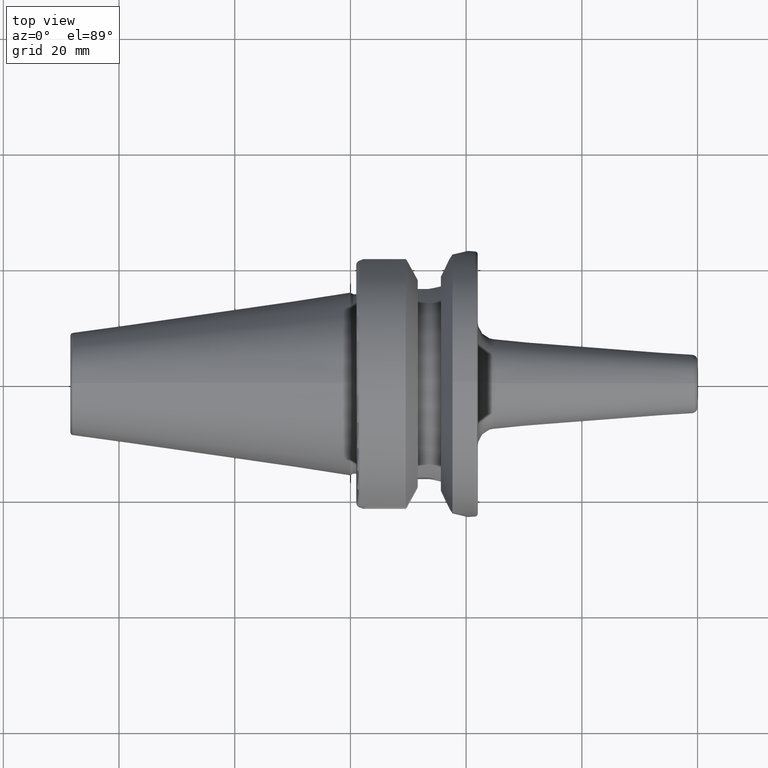
[diagram: clean part render]
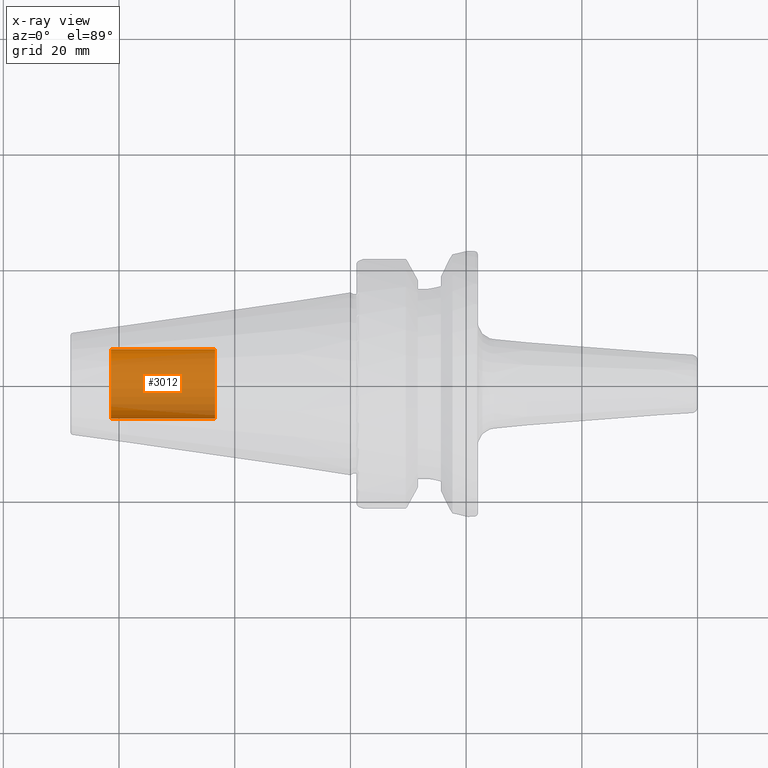
[diagram: x-ray — body ghosted, one internal face saturated and labeled with its STEP entity id]
A machine part, top view, then the same camera in x-ray: the body is ghosted and one INTERNAL B-rep face — a face not visible from any outside direction — is saturated and labeled: STEP entity #3012.
In plain terms, the highlighted cylindrical surface (edge-blend (fillet) strip) has radius 6 mm, axis along (-1, 0, 0).
Its self-contained STEP definition (entity closure, byte-faithful):
#2947=CARTESIAN_POINT('',(-4.14E1,0.E0,0.E0));
#2948=DIRECTION('',(1.E0,0.E0,0.E0));
#2949=DIRECTION('',(0.E0,-1.E0,0.E0));
#2950=AXIS2_PLACEMENT_3D('',#2947,#2948,#2949);
#2957=DIRECTION('',(1.E0,0.E0,0.E0));
#2958=VECTOR('',#2957,1.8E1);
#2959=CARTESIAN_POINT('',(-4.14E1,-6.E0,0.E0));
#2960=LINE('',#2959,#2958);
#2961=DIRECTION('',(1.E0,0.E0,0.E0));
#2962=VECTOR('',#2961,1.8E1);
#2963=CARTESIAN_POINT('',(-4.14E1,6.E0,0.E0));
#2964=LINE('',#2963,#2962);
#2970=CARTESIAN_POINT('',(-2.34E1,0.E0,0.E0));
#2971=DIRECTION('',(-1.E0,0.E0,0.E0));
#2972=DIRECTION('',(0.E0,1.E0,0.E0));
#2973=AXIS2_PLACEMENT_3D('',#2970,#2971,#2972);
#2985=CARTESIAN_POINT('',(-2.34E1,6.E0,0.E0));
#2986=CARTESIAN_POINT('',(-2.34E1,-6.E0,0.E0));
#2987=VERTEX_POINT('',#2985);
#2988=VERTEX_POINT('',#2986);
#2989=CARTESIAN_POINT('',(-4.14E1,6.E0,0.E0));
#2990=CARTESIAN_POINT('',(-4.14E1,-6.E0,0.E0));
#2991=VERTEX_POINT('',#2989);
#2992=VERTEX_POINT('',#2990);
#2997=CARTESIAN_POINT('',(-8.432391385107E0,0.E0,0.E0));
#2998=DIRECTION('',(-1.E0,0.E0,0.E0));
#2999=DIRECTION('',(0.E0,1.E0,0.E0));
#3000=AXIS2_PLACEMENT_3D('',#2997,#2998,#2999);
#3001=CYLINDRICAL_SURFACE('',#3000,6.E0);
#3003=ORIENTED_EDGE('',*,*,#3002,.T.);
#3005=ORIENTED_EDGE('',*,*,#3004,.T.);
#3007=ORIENTED_EDGE('',*,*,#3006,.T.);
#3009=ORIENTED_EDGE('',*,*,#3008,.F.);
#3010=EDGE_LOOP('',(#3003,#3005,#3007,#3009));
#3011=FACE_OUTER_BOUND('',#3010,.F.);
#3012=ADVANCED_FACE('',(#3011),#3001,.F.);
#2951=CIRCLE('',#2950,6.E0);
#2974=CIRCLE('',#2973,6.E0);
#3002=EDGE_CURVE('',#2992,#2991,#2951,.T.);
#3004=EDGE_CURVE('',#2991,#2987,#2964,.T.);
#3006=EDGE_CURVE('',#2987,#2988,#2974,.T.);
#3008=EDGE_CURVE('',#2992,#2988,#2960,.T.);